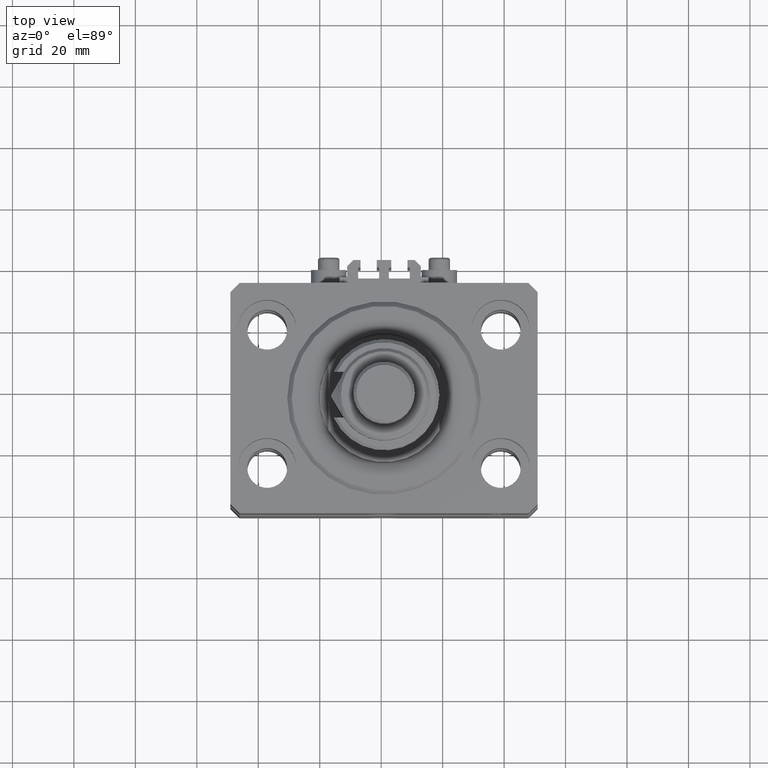
[diagram: clean part render]
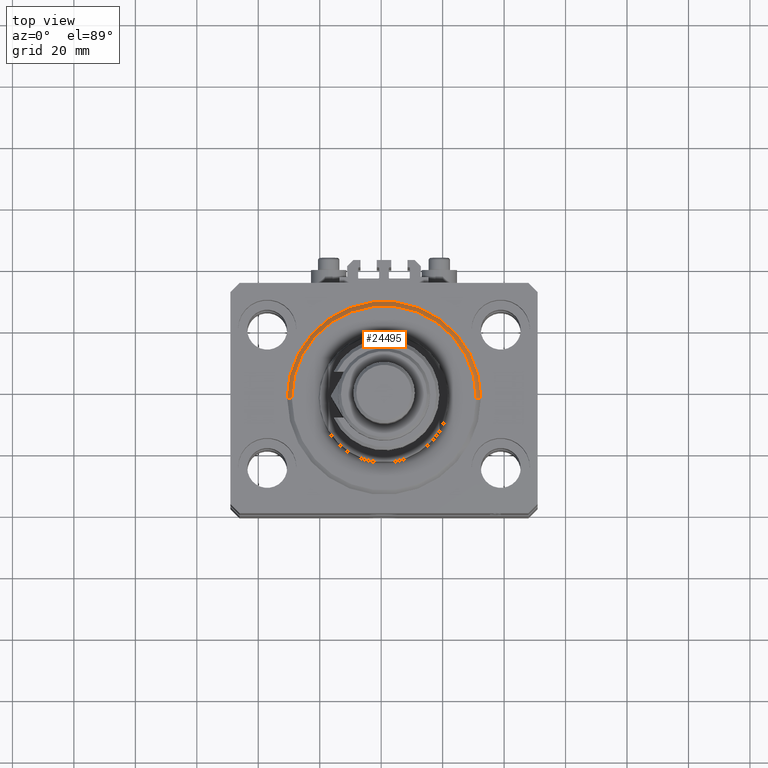
[diagram: same view with one face highlighted and labeled with its STEP entity id]
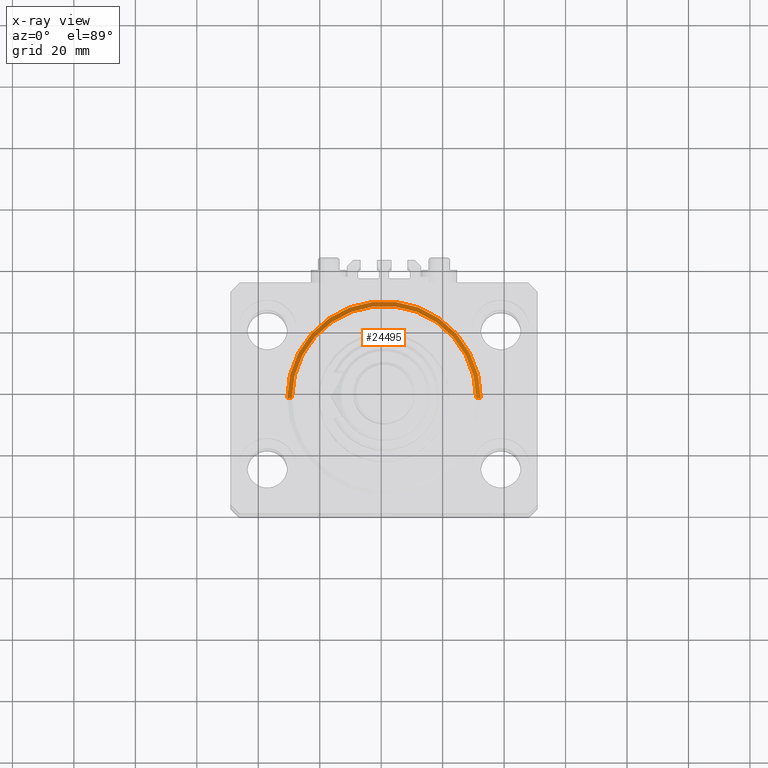
[diagram: x-ray of the same camera — body ghosted, the highlighted face saturated]
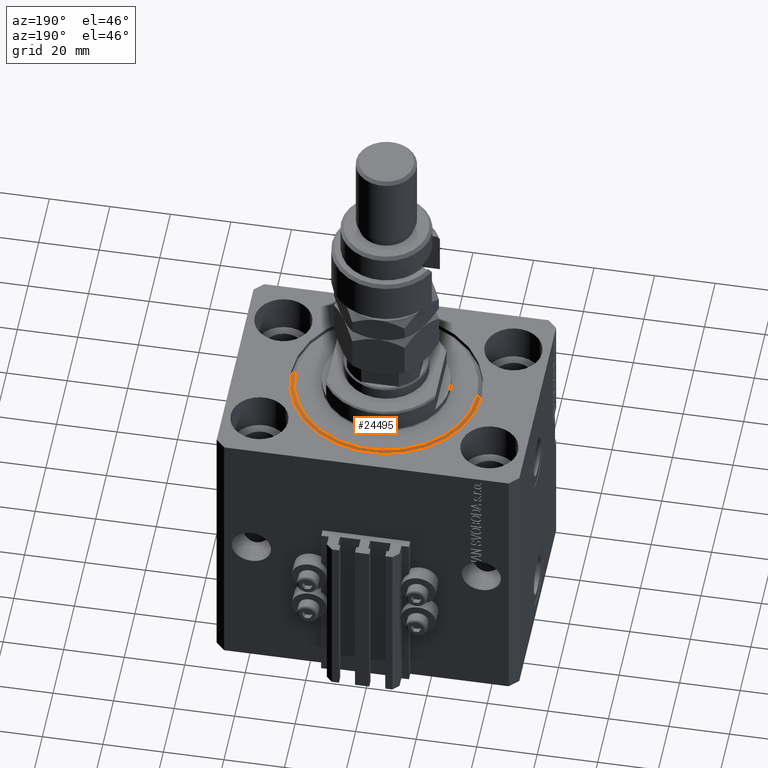
[diagram: same view with one face highlighted and labeled with its STEP entity id]
A machine part, top view. The second image highlights one B-rep face of the part: STEP entity #24495.
The next image is the same camera in x-ray: the body ghosted, the highlighted face saturated — about 0% of this face is hidden behind the body in this view.
A second angle (auxiliary view) of the same face is appended — the face is thin or edge-on in the first view.
In plain terms, the highlighted conical surface has half-angle 45 deg.
Its self-contained STEP definition (entity closure, byte-faithful):
#1703 = CARTESIAN_POINT ( 'NONE',  ( -31.50000000000000000, 0.000000000000000000, 1.500000000000001332 ) ) ;
#4594 = AXIS2_PLACEMENT_3D ( 'NONE', #35459, #44298, #16984 ) ;
#4626 = ORIENTED_EDGE ( 'NONE', *, *, #18709, .F. ) ;
#5846 = DIRECTION ( 'NONE',  ( 1.000000000000000000, 0.000000000000000000, 0.000000000000000000 ) ) ;
#6147 = VERTEX_POINT ( 'NONE', #16940 ) ;
#6704 = EDGE_CURVE ( 'NONE', #43958, #6147, #36814, .T. ) ;
#6800 = LINE ( 'NONE', #46616, #36144 ) ;
#12589 = ORIENTED_EDGE ( 'NONE', *, *, #6704, .F. ) ;
#12919 = CARTESIAN_POINT ( 'NONE',  ( 0.000000000000000000, 0.000000000000000000, 0.000000000000000000 ) ) ;
#13126 = LINE ( 'NONE', #21290, #36323 ) ;
#14218 = CARTESIAN_POINT ( 'NONE',  ( -29.99999999999999289, 3.765788907378110539E-15, 0.000000000000000000 ) ) ;
#14798 = AXIS2_PLACEMENT_3D ( 'NONE', #12919, #47151, #16254 ) ;
#15151 = EDGE_LOOP ( 'NONE', ( #12589, #36791, #41824, #4626 ) ) ;
#16254 = DIRECTION ( 'NONE',  ( 1.000000000000000000, 0.000000000000000000, 0.000000000000000000 ) ) ;
#16940 = CARTESIAN_POINT ( 'NONE',  ( 29.99999999999999289, 0.000000000000000000, 0.000000000000000000 ) ) ;
#16984 = DIRECTION ( 'NONE',  ( 1.000000000000000000, 0.000000000000000000, 0.000000000000000000 ) ) ;
#18709 = EDGE_CURVE ( 'NONE', #6147, #28176, #13126, .T. ) ;
#21290 = CARTESIAN_POINT ( 'NONE',  ( 31.50000000000000000, 0.000000000000000000, 1.500000000000001332 ) ) ;
#24495 = ADVANCED_FACE ( 'NONE', ( #35210 ), #43745, .T. ) ;
#27230 = DIRECTION ( 'NONE',  ( -0.7071067811865491270, 8.659560562354952580E-17, 0.7071067811865459074 ) ) ;
#28176 = VERTEX_POINT ( 'NONE', #40881 ) ;
#29584 = DIRECTION ( 'NONE',  ( -0.000000000000000000, -0.000000000000000000, 1.000000000000000000 ) ) ;
#35210 = FACE_OUTER_BOUND ( 'NONE', #15151, .T. ) ;
#35302 = AXIS2_PLACEMENT_3D ( 'NONE', #48491, #29584, #5846 ) ;
#35459 = CARTESIAN_POINT ( 'NONE',  ( 0.000000000000000000, 0.000000000000000000, 1.500000000000001332 ) ) ;
#36144 = VECTOR ( 'NONE', #27230, 1000.000000000000000 ) ;
#36323 = VECTOR ( 'NONE', #48369, 1000.000000000000000 ) ;
#36791 = ORIENTED_EDGE ( 'NONE', *, *, #38938, .T. ) ;
#36814 = CIRCLE ( 'NONE', #14798, 29.99999999999999289 ) ;
#38938 = EDGE_CURVE ( 'NONE', #43958, #40241, #6800, .T. ) ;
#39387 = CIRCLE ( 'NONE', #35302, 31.50000000000000000 ) ;
#40241 = VERTEX_POINT ( 'NONE', #1703 ) ;
#40881 = CARTESIAN_POINT ( 'NONE',  ( 31.50000000000000000, 3.857637417314162689E-15, 1.500000000000001332 ) ) ;
#41824 = ORIENTED_EDGE ( 'NONE', *, *, #42094, .F. ) ;
#42094 = EDGE_CURVE ( 'NONE', #28176, #40241, #39387, .T. ) ;
#43745 = CONICAL_SURFACE ( 'NONE', #4594, 31.50000000000000000, 0.7853981633974506105 ) ;
#43958 = VERTEX_POINT ( 'NONE', #14218 ) ;
#44298 = DIRECTION ( 'NONE',  ( -0.000000000000000000, -0.000000000000000000, 1.000000000000000000 ) ) ;
#46616 = CARTESIAN_POINT ( 'NONE',  ( -31.50000000000000000, 3.857637417314162689E-15, 1.500000000000001332 ) ) ;
#47151 = DIRECTION ( 'NONE',  ( -0.000000000000000000, -0.000000000000000000, -1.000000000000000000 ) ) ;
#48369 = DIRECTION ( 'NONE',  ( 0.7071067811865491270, 0.000000000000000000, 0.7071067811865459074 ) ) ;
#48491 = CARTESIAN_POINT ( 'NONE',  ( 0.000000000000000000, 0.000000000000000000, 1.500000000000001332 ) ) ;